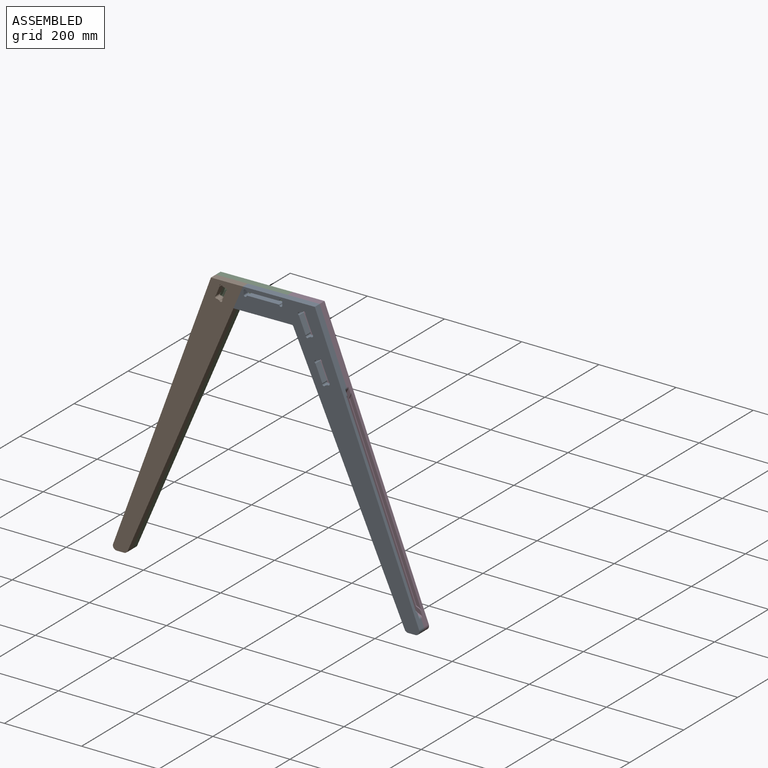
[diagram: assembled view]
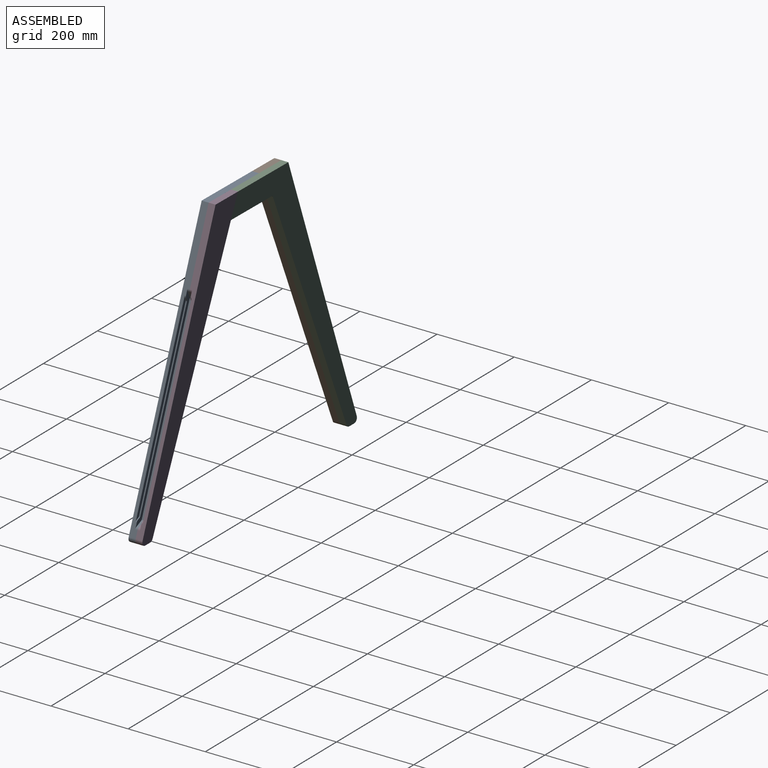
[diagram: assembled view, second angle]
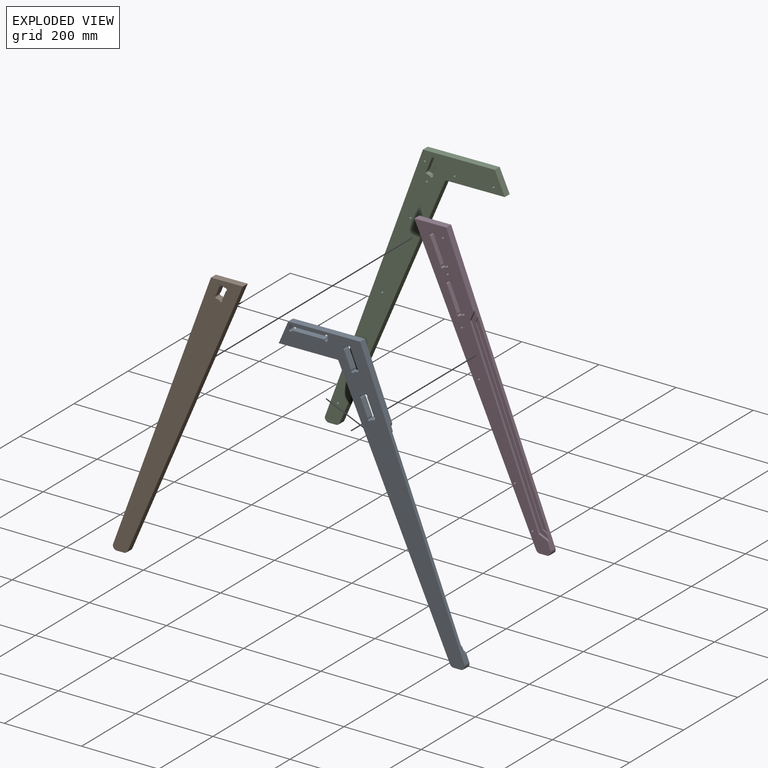
[diagram: exploded view]
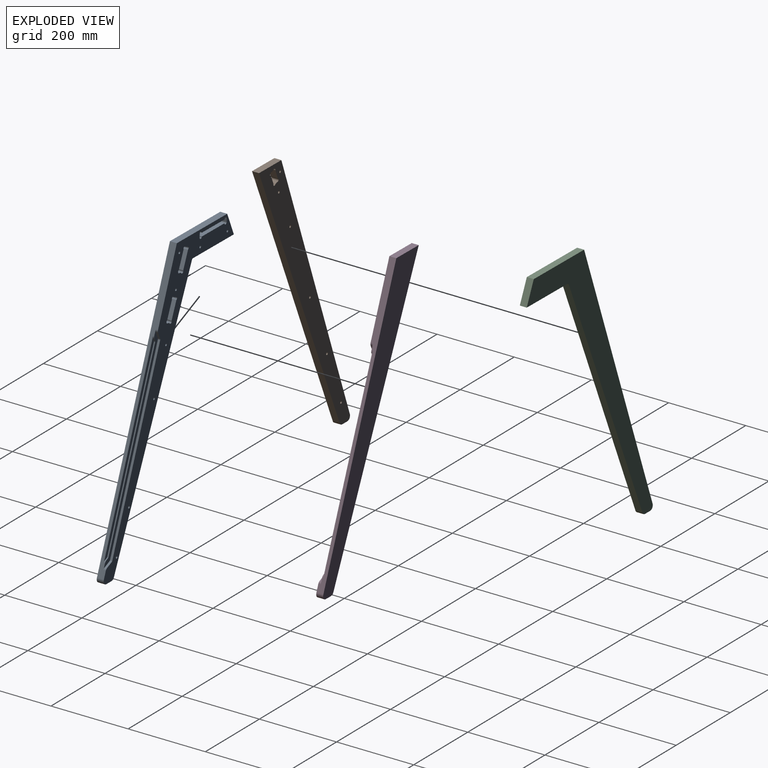
[diagram: exploded view, second angle]
ASSEMBLY  parts=4 mates=8
PART A: 75 faces, bbox 217x18x819.2 mm
  f0: plane 819.15x217mm, normal (0,-1,0), area 38399.4mm2, adj f1,f2,f3,f4,f5,f6,f7,f8
  f1: plane 77.15x33.22mm, normal (0.4,0,-0.92), area 1512mm2, adj f0,f2,f41,f42
  f2: cylinder r=4mm len=18mm, axis (0,-1,0), area 226.2mm2, adj f0,f1,f3,f42
  f3: plane 18x8.27mm, normal (-0.92,0,-0.4), area 162mm2, adj f0,f2,f4,f42
  f4: cylinder r=4mm len=18mm, axis (0,-1,0), area 226.2mm2, adj f0,f3,f5,f42
  f5: plane 77.15x33.22mm, normal (-0.4,0,0.92), area 1512mm2, adj f0,f4,f6,f42
  f6: cylinder r=4mm len=18mm, axis (0,-1,0), area 226.2mm2, adj f0,f5,f7,f42
  f7: plane 18x8.27mm, normal (0.92,0,0.4), area 162mm2, adj f0,f6,f41,f42
  f8: cylinder r=4mm len=18mm, axis (0,-1,0), area 226.2mm2, adj f0,f9,f38,f42
  f9: plane 18x6.69mm, normal (-0.02,0,1), area 120.4mm2, adj f0,f8,f10,f42
  f10: cylinder r=4mm len=18mm, axis (0,-1,0), area 226.2mm2, adj f0,f9,f11,f42
  f11: plane 45.68x18mm, normal (1,0,0.02), area 822.4mm2, adj f0,f10,f12,f42
  f12: cylinder r=4mm len=18mm, axis (0,-1,0), area 226.2mm2, adj f0,f11,f13,f42
  f13: plane 18x6.69mm, normal (0.02,0,-1), area 120.4mm2, adj f0,f12,f14,f42
  f14: cylinder r=4mm len=18mm, axis (0,-1,0), area 226.2mm2, adj f0,f13,f38,f42
  f15: plane 45.68x18mm, normal (1,0,0.02), area 822.4mm2, adj f0,f16,f39,f42
  f16: cylinder r=4mm len=18mm, axis (0,-1,0), area 226.2mm2, adj f0,f15,f17,f42
  f17: plane 18x6.69mm, normal (0.02,0,-1), area 120.4mm2, adj f0,f16,f18,f42
  f18: cylinder r=4mm len=18mm, axis (0,-1,0), area 226.2mm2, adj f0,f17,f19,f42
  f19: plane 45.68x18mm, normal (-1,0,-0.02), area 822.4mm2, adj f0,f18,f20,f42
  f20: cylinder r=4mm len=18mm, axis (0,-1,0), area 226.2mm2, adj f0,f19,f21,f42
  f21: plane 18x6.69mm, normal (-0.02,0,1), area 120.4mm2, adj f0,f20,f39,f42
  f22: plane 12.3x12mm, normal (1,0,0.04), area 147.8mm2, adj f23,f40,f42,f74
  f23: plane 18x2.68mm, normal (1,0,0.04), area 48.4mm2, adj f0,f22,f24,f42,f67
  f24: plane 18x17.24mm, normal (1,0,0.04), area 310.6mm2, adj f0,f23,f25,f42
  f25: cylinder r=10mm len=18mm, axis (0,-1,0), area 348.2mm2, adj f0,f24,f26,f42
  f26: plane 18x17.35mm, normal (-0.4,0,0.92), area 340.1mm2, adj f0,f25,f27,f42
  f27: cylinder r=10mm len=18mm, axis (0,-1,0), area 207.9mm2, adj f0,f26,f28,f42
  f28: plane 695.74x18mm, normal (-1,0,0.01), area 12523.8mm2, adj f0,f27,f29,f42
  f29: cylinder r=4mm len=18mm, axis (0,-1,0), area 83.2mm2, adj f0,f28,f30,f42
  f30: plane 139.06x59.87mm, normal (-0.4,0,0.92), area 2725.2mm2, adj f0,f29,f31,f42
  f31: plane 45.8x42.53mm, normal (-0.68,0,-0.73), area 1125mm2, adj f0,f30,f32,f42
  f32: plane 171.2x73.71mm, normal (0.4,0,-0.92), area 3355.1mm2, adj f0,f31,f33,f42
  f33: plane 187.13x18mm, normal (1,0,0.04), area 3371.4mm2, adj f0,f32,f34,f42
  f34: plane 18x2.68mm, normal (1,0,0.04), area 48.4mm2, adj f0,f33,f35,f42,f73
  f35: plane 12.3x12mm, normal (1,0,0.04), area 147.8mm2, adj f34,f36,f42,f74
  f36: plane 12x2.68mm, normal (1,0,0.04), area 32.2mm2, adj f35,f37,f42,f65,f74
  f37: plane 496.17x21.4mm, normal (1,0,0.04), area 4469.6mm2, adj f36,f40,f42,f66
  f38: plane 45.68x18mm, normal (-1,0,-0.02), area 822.4mm2, adj f0,f8,f14,f42
  f39: cylinder r=4mm len=18mm, axis (0,-1,0), area 226.2mm2, adj f0,f15,f21,f42
  f40: plane 12x2.68mm, normal (1,0,0.04), area 32.2mm2, adj f22,f37,f42,f59,f74
  f41: cylinder r=4mm len=18mm, axis (0,-1,0), area 226.2mm2, adj f0,f1,f7,f42
  f42: plane 819.15x217mm, normal (0,1,0), area 47282.4mm2, adj f1,f2,f3,f4,f5,f6,f7,f8
  f43: cylinder r=3mm len=14mm, axis (0,-1,0), area 263.9mm2, adj f0,f44
  f44: plane 6x6mm, normal (0,-1,0), area 28.3mm2, adj f43
  f45: cylinder r=3mm len=14mm, axis (0,-1,0), area 263.9mm2, adj f0,f46
  f46: plane 6x6mm, normal (0,-1,0), area 28.3mm2, adj f45
  f47: cylinder r=3mm len=14mm, axis (0,-1,0), area 263.9mm2, adj f0,f48
  f48: plane 6x6mm, normal (0,-1,0), area 28.3mm2, adj f47
  f49: cylinder r=3mm len=14mm, axis (0,-1,0), area 263.9mm2, adj f0,f50
  f50: plane 6x6mm, normal (0,-1,0), area 28.3mm2, adj f49
  f51: cylinder r=3mm len=14mm, axis (0,-1,0), area 263.9mm2, adj f0,f52
  f52: plane 6x6mm, normal (0,-1,0), area 28.3mm2, adj f51
  f53: cylinder r=3mm len=14mm, axis (0,-1,0), area 263.9mm2, adj f0,f54
  f54: plane 6x6mm, normal (0,-1,0), area 28.3mm2, adj f53
  f55: cylinder r=3mm len=14mm, axis (0,-1,0), area 263.9mm2, adj f0,f56
  f56: plane 6x6mm, normal (0,-1,0), area 28.3mm2, adj f55
  f57: cylinder r=3mm len=14mm, axis (0,-1,0), area 263.9mm2, adj f0,f58
  f58: plane 6x6mm, normal (0,-1,0), area 28.3mm2, adj f57
  f59: cylinder r=8mm len=5.75mm, axis (0,-1,0), area 18.8mm2, adj f40,f60,f66,f74
  f60: plane 5.31x4.87mm, normal (0.74,0,-0.68), area 21.6mm2, adj f59,f61,f66,f74
  f61: cylinder r=4mm len=3mm, axis (0,-1,0), area 9.4mm2, adj f60,f62,f66,f74
  f62: plane 469.04x20.23mm, normal (1,0,0.04), area 1408.4mm2, adj f61,f63,f66,f74
  f63: cylinder r=4mm len=3mm, axis (0,-1,0), area 9.4mm2, adj f62,f64,f66,f74
  f64: plane 5.31x4.87mm, normal (0.68,0,0.74), area 21.6mm2, adj f63,f65,f66,f74
  f65: cylinder r=8mm len=5.55mm, axis (0,-1,0), area 18.8mm2, adj f36,f64,f66,f74
  f66: plane 496.17x29.42mm, normal (0,-1,0), area 4145.3mm2, adj f37,f59,f60,f61,f62,f63,f64,f65
  f67: cylinder r=8mm len=6mm, axis (0,-1,0), area 37.7mm2, adj f0,f23,f68,f74
  f68: plane 14.28x13.1mm, normal (0.74,0,-0.68), area 116.2mm2, adj f0,f67,f69,f74
  f69: cylinder r=4mm len=6mm, axis (0,-1,0), area 18.8mm2, adj f0,f68,f70,f74
  f70: plane 481.81x20.78mm, normal (1,0,0.04), area 2893.6mm2, adj f0,f69,f71,f74
  f71: cylinder r=4mm len=6mm, axis (0,-1,0), area 18.8mm2, adj f0,f70,f72,f74
  f72: plane 14.28x13.1mm, normal (0.68,0,0.74), area 116.2mm2, adj f0,f71,f73,f74
  f73: cylinder r=8mm len=6mm, axis (0,-1,0), area 37.7mm2, adj f0,f34,f72,f74
  f74: plane 526.14x38.94mm, normal (0,-1,0), area 4511.5mm2, adj f22,f35,f36,f40,f59,f60,f61,f62
PART B: 28 faces, bbox 77.4x18x776.1 mm
  f0: plane 24.6x18mm, normal (-1,0,-0.03), area 442.9mm2, adj f1,f13,f14,f15
  f1: cylinder r=4mm len=18mm, axis (0,-1,0), area 227.3mm2, adj f0,f2,f14,f15
  f2: plane 18x6.28mm, normal (-0.03,0,1), area 113.1mm2, adj f1,f3,f14,f15
  f3: cylinder r=4mm len=18mm, axis (0,-1,0), area 227.2mm2, adj f2,f4,f14,f15
  f4: plane 24.58x18mm, normal (1,0,0.04), area 442.9mm2, adj f3,f5,f14,f15
  f5: cylinder r=4mm len=18mm, axis (0,-1,0), area 227.2mm2, adj f4,f6,f14,f15
  f6: plane 18x6.68mm, normal (0.03,0,-1), area 120.3mm2, adj f5,f13,f14,f15
  f7: cylinder r=10mm len=18mm, axis (0,-1,0), area 348.2mm2, adj f8,f12,f14,f15
  f8: plane 736.56x18mm, normal (1,0,0), area 13258.1mm2, adj f7,f9,f14,f15
  f9: plane 77.44x29.53mm, normal (0.36,0,0.93), area 1491.9mm2, adj f8,f10,f14,f15
  f10: plane 759.86x39.15mm, normal (-1,0,-0.05), area 13695.7mm2, adj f9,f11,f14,f15
  f11: cylinder r=10mm len=18mm, axis (0,-1,0), area 207.9mm2, adj f10,f12,f14,f15
  f12: plane 18x17.65mm, normal (-0.36,0,-0.93), area 340.1mm2, adj f7,f11,f14,f15
  f13: cylinder r=4mm len=18mm, axis (0,-1,0), area 227.3mm2, adj f0,f6,f14,f15
  f14: plane 776.08x77.44mm, normal (0,1,0), area 42369.7mm2, adj f0,f1,f2,f3,f4,f5,f6,f7
  f15: plane 776.08x77.44mm, normal (0,-1,0), area 42200.1mm2, adj f0,f1,f2,f3,f4,f5,f6,f7
  f16: cylinder r=3mm len=14mm, axis (0,-1,0), area 263.9mm2, adj f15,f17
  f17: plane 6x6mm, normal (0,-1,0), area 28.3mm2, adj f16
  f18: cylinder r=3mm len=14mm, axis (0,-1,0), area 263.9mm2, adj f15,f19
  f19: plane 6x6mm, normal (0,-1,0), area 28.3mm2, adj f18
  f20: cylinder r=3mm len=14mm, axis (0,-1,0), area 263.9mm2, adj f15,f21
  f21: plane 6x6mm, normal (0,-1,0), area 28.3mm2, adj f20
  f22: cylinder r=3mm len=14mm, axis (0,-1,0), area 263.9mm2, adj f15,f23
  f23: plane 6x6mm, normal (0,-1,0), area 28.3mm2, adj f22
  f24: cylinder r=3mm len=14mm, axis (0,-1,0), area 263.9mm2, adj f15,f25
  f25: plane 6x6mm, normal (0,-1,0), area 28.3mm2, adj f24
  f26: cylinder r=3mm len=14mm, axis (0,-1,0), area 263.9mm2, adj f15,f27
  f27: plane 6x6mm, normal (0,-1,0), area 28.3mm2, adj f26
PART C: 36 faces, bbox 218.1x18x812.8 mm
  f0: cylinder r=10mm len=18mm, axis (0,-1,0), area 207.9mm2, adj f1,f8,f9,f10
  f1: plane 694.81x36.41mm, normal (1,0,-0.05), area 12523.8mm2, adj f0,f2,f9,f10
  f2: cylinder r=4mm len=18mm, axis (0,-1,0), area 83.2mm2, adj f1,f3,f9,f10
  f3: plane 141.51x53.82mm, normal (0.36,0,-0.93), area 2725.2mm2, adj f2,f4,f9,f10
  f4: plane 44.47x43.92mm, normal (0.71,0,0.7), area 1125mm2, adj f3,f5,f9,f10
  f5: plane 174.22x66.26mm, normal (-0.36,0,0.93), area 3355.1mm2, adj f4,f6,f9,f10
  f6: plane 736.56x18mm, normal (-1,0,0), area 13258.1mm2, adj f5,f7,f9,f10
  f7: cylinder r=10mm len=18mm, axis (0,-1,0), area 348.2mm2, adj f6,f8,f9,f10
  f8: plane 18x17.66mm, normal (0.36,0,-0.93), area 340.1mm2, adj f0,f7,f9,f10
  f9: plane 812.82x218.14mm, normal (0,1,0), area 50408mm2, adj f0,f1,f2,f3,f4,f5,f6,f7
  f10: plane 812.82x218.14mm, normal (0,-1,0), area 49327mm2, adj f0,f1,f2,f3,f4,f5,f6,f7
  f11: cylinder r=3mm len=14mm, axis (0,-1,0), area 263.9mm2, adj f10,f12
  f12: plane 6x6mm, normal (0,-1,0), area 28.3mm2, adj f11
  f13: cylinder r=3mm len=14mm, axis (0,-1,0), area 263.9mm2, adj f10,f14
  f14: plane 6x6mm, normal (0,-1,0), area 28.3mm2, adj f13
  f15: cylinder r=3mm len=14mm, axis (0,-1,0), area 263.9mm2, adj f10,f16
  f16: plane 6x6mm, normal (0,-1,0), area 28.3mm2, adj f15
  f17: cylinder r=3mm len=14mm, axis (0,-1,0), area 263.9mm2, adj f10,f18
  f18: plane 6x6mm, normal (0,-1,0), area 28.3mm2, adj f17
  f19: cylinder r=3mm len=14mm, axis (0,-1,0), area 263.9mm2, adj f10,f20
  f20: plane 6x6mm, normal (0,-1,0), area 28.3mm2, adj f19
  f21: cylinder r=3mm len=14mm, axis (0,-1,0), area 263.9mm2, adj f10,f22
  f22: plane 6x6mm, normal (0,-1,0), area 28.3mm2, adj f21
  f23: cylinder r=3mm len=14mm, axis (0,-1,0), area 263.9mm2, adj f10,f24
  f24: plane 6x6mm, normal (0,-1,0), area 28.3mm2, adj f23
  f25: cylinder r=3mm len=14mm, axis (0,-1,0), area 263.9mm2, adj f10,f26
  f26: plane 6x6mm, normal (0,-1,0), area 28.3mm2, adj f25
  f27: cylinder r=4mm len=12.5mm, axis (0,-1,0), area 157.9mm2, adj f10,f28,f34,f35
  f28: plane 12.5x6.28mm, normal (0.03,0,1), area 78.5mm2, adj f10,f27,f29,f35
  f29: cylinder r=4mm len=12.5mm, axis (0,-1,0), area 157.3mm2, adj f10,f28,f30,f35
  f30: plane 34.62x12.5mm, normal (-1,0,0.04), area 433.1mm2, adj f10,f29,f31,f35
  f31: cylinder r=4mm len=12.5mm, axis (0,-1,0), area 157.5mm2, adj f10,f30,f32,f35
  f32: plane 12.5x6.68mm, normal (-0.03,0,-1), area 83.6mm2, adj f10,f31,f33,f35
  f33: cylinder r=4mm len=12.5mm, axis (0,-1,0), area 156mm2, adj f10,f32,f34,f35
  f34: plane 34.69x12.5mm, normal (1,0,-0.03), area 433.8mm2, adj f10,f27,f33,f35
  f35: plane 48.73x21.5mm, normal (0,-1,0), area 854.8mm2, adj f27,f28,f29,f30,f31,f32,f33,f34
PART D: 62 faces, bbox 77.2x18x776.6 mm
  f0: plane 776.61x77.19mm, normal (0,-1,0), area 31301.4mm2, adj f2,f3,f4,f5,f6,f7,f8,f9
  f1: plane 12.31x12mm, normal (1,0,-0.01), area 147.8mm2, adj f2,f14,f15,f43
  f2: plane 18x2.69mm, normal (1,0,-0.01), area 48.4mm2, adj f0,f1,f3,f15,f36
  f3: plane 187.29x18mm, normal (1,0,-0.01), area 3371.4mm2, adj f0,f2,f4,f15
  f4: plane 77.19x30.18mm, normal (0.36,0,0.93), area 1491.9mm2, adj f0,f3,f5,f15
  f5: plane 760.17x32.79mm, normal (-1,0,-0.04), area 13695.7mm2, adj f0,f4,f6,f15
  f6: cylinder r=10mm len=18mm, axis (0,-1,0), area 207.9mm2, adj f0,f5,f7,f15
  f7: plane 18x17.6mm, normal (-0.36,0,-0.93), area 340.1mm2, adj f0,f6,f8,f15
  f8: cylinder r=10mm len=18mm, axis (0,-1,0), area 348.2mm2, adj f0,f7,f9,f15
  f9: plane 18x17.26mm, normal (1,0,-0.01), area 310.6mm2, adj f0,f8,f10,f15
  f10: plane 18x2.69mm, normal (1,0,-0.01), area 48.4mm2, adj f0,f9,f11,f15,f42
  f11: plane 12.31x12mm, normal (1,0,-0.01), area 147.8mm2, adj f10,f12,f15,f43
  f12: plane 12x2.69mm, normal (1,0,-0.01), area 32.2mm2, adj f11,f13,f15,f34,f43
  f13: plane 496.61x9mm, normal (1,0,-0.01), area 4469.6mm2, adj f12,f14,f15,f35
  f14: plane 12x2.69mm, normal (1,0,-0.01), area 32.2mm2, adj f1,f13,f15,f28,f43
  f15: plane 776.61x77.19mm, normal (0,1,0), area 43044.9mm2, adj f1,f2,f3,f4,f5,f6,f7,f8
  f16: cylinder r=3mm len=14mm, axis (0,-1,0), area 263.9mm2, adj f0,f17
  f17: plane 6x6mm, normal (0,-1,0), area 28.3mm2, adj f16
  f18: cylinder r=3mm len=14mm, axis (0,-1,0), area 263.9mm2, adj f0,f19
  f19: plane 6x6mm, normal (0,-1,0), area 28.3mm2, adj f18
  f20: cylinder r=3mm len=14mm, axis (0,-1,0), area 263.9mm2, adj f0,f21
  f21: plane 6x6mm, normal (0,-1,0), area 28.3mm2, adj f20
  f22: cylinder r=3mm len=14mm, axis (0,-1,0), area 263.9mm2, adj f0,f23
  f23: plane 6x6mm, normal (0,-1,0), area 28.3mm2, adj f22
  f24: cylinder r=3mm len=14mm, axis (0,-1,0), area 263.9mm2, adj f0,f25
  f25: plane 6x6mm, normal (0,-1,0), area 28.3mm2, adj f24
  f26: cylinder r=3mm len=14mm, axis (0,-1,0), area 263.9mm2, adj f0,f27
  f27: plane 6x6mm, normal (0,-1,0), area 28.3mm2, adj f26
  f28: cylinder r=8mm len=5.64mm, axis (0,-1,0), area 18.8mm2, adj f14,f29,f35,f43
  f29: plane 5.14x5.04mm, normal (0.7,0,-0.71), area 21.6mm2, adj f28,f30,f35,f43
  f30: cylinder r=4mm len=3mm, axis (0,-1,0), area 9.4mm2, adj f29,f31,f35,f43
  f31: plane 469.45x4.35mm, normal (1,0,-0.01), area 1408.4mm2, adj f30,f32,f35,f43
  f32: cylinder r=4mm len=3mm, axis (0,-1,0), area 9.4mm2, adj f31,f33,f35,f43
  f33: plane 5.14x5.04mm, normal (0.71,0,0.7), area 21.6mm2, adj f32,f34,f35,f43
  f34: cylinder r=8mm len=5.68mm, axis (0,-1,0), area 18.8mm2, adj f12,f33,f35,f43
  f35: plane 496.61x13.08mm, normal (0,-1,0), area 4145.3mm2, adj f13,f28,f29,f30,f31,f32,f33,f34
  f36: cylinder r=8mm len=6mm, axis (0,-1,0), area 37.7mm2, adj f0,f2,f37,f43
  f37: plane 13.83x13.57mm, normal (0.7,0,-0.71), area 116.2mm2, adj f0,f36,f38,f43
  f38: cylinder r=4mm len=6mm, axis (0,-1,0), area 18.8mm2, adj f0,f37,f39,f43
  f39: plane 482.24x6mm, normal (1,0,-0.01), area 2893.6mm2, adj f0,f38,f40,f43
  f40: cylinder r=4mm len=6mm, axis (0,-1,0), area 18.8mm2, adj f0,f39,f41,f43
  f41: plane 13.83x13.57mm, normal (0.71,0,0.7), area 116.2mm2, adj f0,f40,f42,f43
  f42: cylinder r=8mm len=6mm, axis (0,-1,0), area 37.7mm2, adj f0,f10,f41,f43
  f43: plane 526.61x21.88mm, normal (0,-1,0), area 4511.5mm2, adj f1,f11,f12,f14,f28,f29,f30,f31
  f44: cylinder r=4mm len=12.5mm, axis (0,-1,0), area 157.1mm2, adj f0,f45,f51,f52
  f45: plane 67.68x12.5mm, normal (1,0,0.02), area 846.1mm2, adj f0,f44,f46,f52
  f46: cylinder r=4mm len=12.5mm, axis (0,-1,0), area 157.1mm2, adj f0,f45,f47,f52
  f47: plane 12.5x6.69mm, normal (-0.02,0,1), area 83.6mm2, adj f0,f46,f48,f52
  f48: cylinder r=4mm len=12.5mm, axis (0,-1,0), area 157.1mm2, adj f0,f47,f49,f52
  f49: plane 67.68x12.5mm, normal (-1,0,-0.02), area 846.1mm2, adj f0,f48,f50,f52
  f50: cylinder r=4mm len=12.5mm, axis (0,-1,0), area 157.1mm2, adj f0,f49,f51,f52
  f51: plane 12.5x6.69mm, normal (0.02,0,-1), area 83.6mm2, adj f0,f44,f50,f52
  f52: plane 81.54x21.58mm, normal (0,-1,0), area 1458.5mm2, adj f44,f45,f46,f47,f48,f49,f50,f51
  f53: cylinder r=4mm len=12.5mm, axis (0,-1,0), area 157.1mm2, adj f0,f54,f60,f61
  f54: plane 67.68x12.5mm, normal (-1,0,-0.02), area 846.1mm2, adj f0,f53,f55,f61
  f55: cylinder r=4mm len=12.5mm, axis (0,-1,0), area 157.1mm2, adj f0,f54,f56,f61
  f56: plane 12.5x6.69mm, normal (0.02,0,-1), area 83.6mm2, adj f0,f55,f57,f61
  f57: cylinder r=4mm len=12.5mm, axis (0,-1,0), area 157.1mm2, adj f0,f56,f58,f61
  f58: plane 67.68x12.5mm, normal (1,0,0.02), area 846.1mm2, adj f0,f57,f59,f61
  f59: cylinder r=4mm len=12.5mm, axis (0,-1,0), area 157.1mm2, adj f0,f58,f60,f61
  f60: plane 12.5x6.69mm, normal (-0.02,0,1), area 83.6mm2, adj f0,f53,f59,f61
  f61: plane 81.54x21.58mm, normal (0,-1,0), area 1458.5mm2, adj f53,f54,f55,f56,f57,f58,f59,f60
PLACE A rot(axis=(-0.98,0,-0.21),180deg) t=(452.8,-34.76,473.38)mm
PLACE B rot(axis=(-0.18,0,-0.98),180deg) t=(31.26,-34.76,233.92)mm
PLACE C rot(axis=(0,1,0),20.1deg) t=(234.31,-34.76,369.98)mm
PLACE D rot(axis=(0,-1,0),22.1deg) t=(663.65,-34.76,341.01)mm
MATE planar A.f31 <-> B.f10  axis (-0.92,0,0.39) through (282.55,-43.76,667.45)mm
MATE cylindrical C.f13 <-> A.f45  axis (0,-1,0) through (293.84,-20.76,655.56)mm
MATE cylindrical B.f22 <-> C.f25  axis (0,1,0) through (-9.08,-34.76,43.28)mm
MATE cylindrical D.f16 <-> A.f49  axis (0,1,0) through (471.57,-20.76,672.73)mm
MATE planar C.f10 <-> B.f15  axis (0,-1,0) through (160.3,-34.76,421.52)mm
MATE planar C.f10 <-> A.f0  axis (0,-1,0) through (348.57,-34.76,639.66)mm
MATE planar A.f0 <-> D.f24  axis (0,1,0) through (396.79,-34.76,678.93)mm
MATE cylindrical D.f26 <-> A.f55  axis (0,1,0) through (703.9,-20.76,47.87)mm
